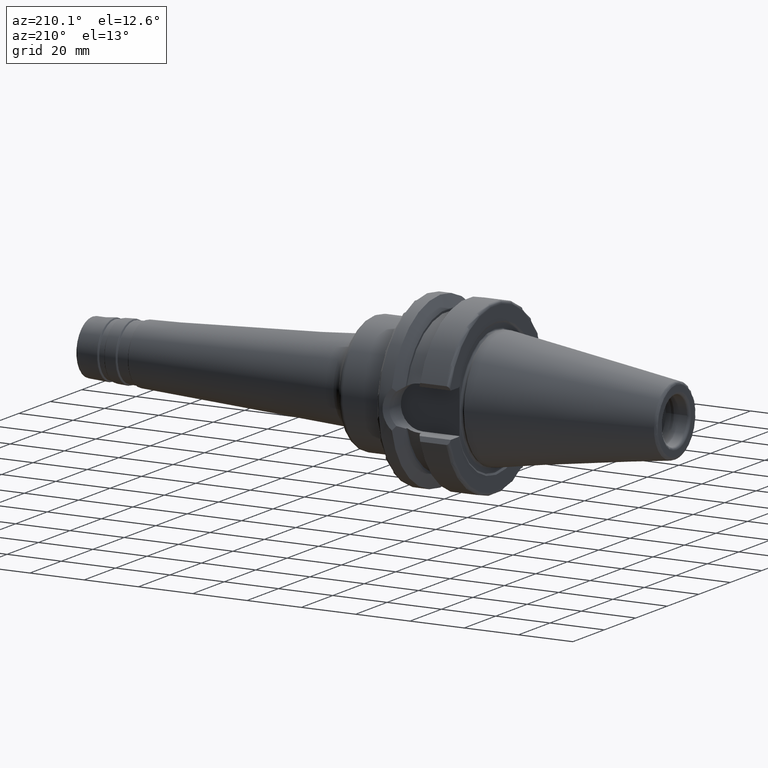
[diagram: clean part render]
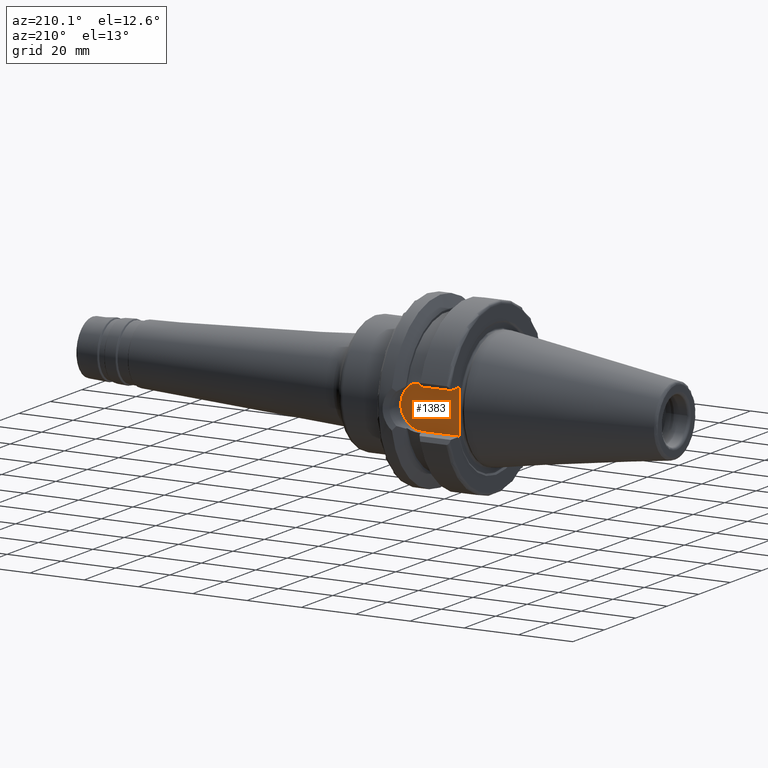
[diagram: same view with one face highlighted and labeled with its STEP entity id]
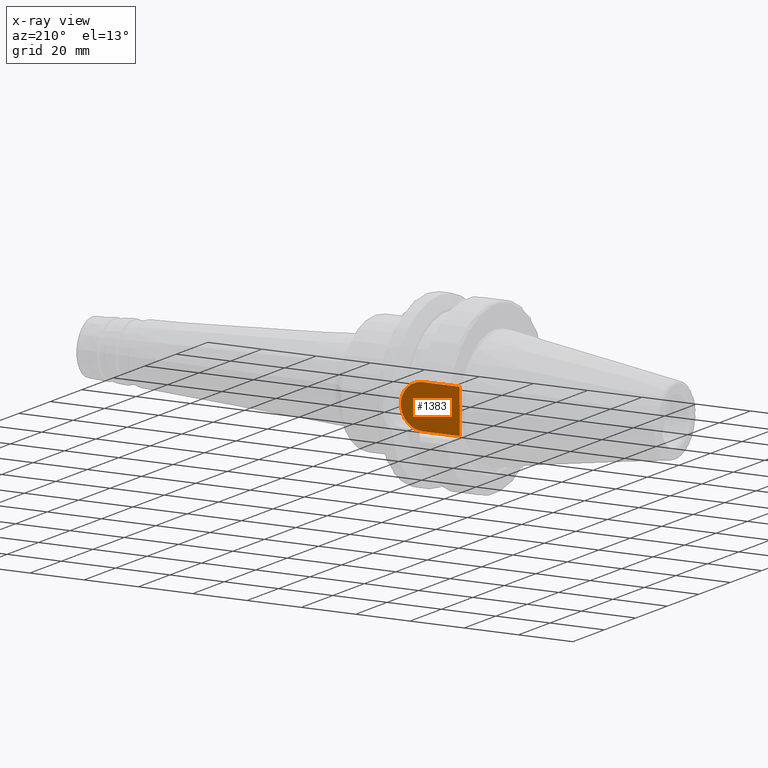
[diagram: x-ray of the same camera — body ghosted, the highlighted face saturated]
A machine part, auxiliary view. The second image highlights one B-rep face of the part: STEP entity #1383.
The next image is the same camera in x-ray: the body ghosted, the highlighted face saturated — about 0% of this face is hidden behind the body in this view.
In plain terms, the highlighted planar face has unit normal (0, 1, 0).
Its self-contained STEP definition (entity closure, byte-faithful):
#119=PLANE('',#1571);
#194=FACE_OUTER_BOUND('',#286,.T.);
#286=EDGE_LOOP('',(#1211,#1212,#1213,#1214,#1215));
#343=LINE('',#2532,#416);
#364=LINE('',#2613,#437);
#369=LINE('',#2660,#442);
#370=LINE('',#2663,#443);
#416=VECTOR('',#1888,10.);
#437=VECTOR('',#1931,10.);
#442=VECTOR('',#1970,10.);
#443=VECTOR('',#1975,10.);
#531=CIRCLE('',#1572,8.05);
#632=VERTEX_POINT('',#2529);
#633=VERTEX_POINT('',#2531);
#654=VERTEX_POINT('',#2610);
#655=VERTEX_POINT('',#2612);
#662=VERTEX_POINT('',#2658);
#805=EDGE_CURVE('',#633,#632,#343,.T.);
#836=EDGE_CURVE('',#654,#655,#364,.T.);
#853=EDGE_CURVE('',#654,#662,#369,.T.);
#854=EDGE_CURVE('',#662,#633,#531,.T.);
#855=EDGE_CURVE('',#655,#632,#370,.T.);
#1211=ORIENTED_EDGE('',*,*,#836,.F.);
#1212=ORIENTED_EDGE('',*,*,#853,.T.);
#1213=ORIENTED_EDGE('',*,*,#854,.T.);
#1214=ORIENTED_EDGE('',*,*,#805,.T.);
#1215=ORIENTED_EDGE('',*,*,#855,.F.);
#1383=ADVANCED_FACE('',(#194),#119,.T.);
#1571=AXIS2_PLACEMENT_3D('',#2661,#1971,#1972);
#1572=AXIS2_PLACEMENT_3D('',#2662,#1973,#1974);
#1888=DIRECTION('',(-1.,0.,7.9585879901445E-17));
#1931=DIRECTION('',(0.,0.,-1.));
#1970=DIRECTION('',(1.,0.,7.95858799014451E-17));
#1971=DIRECTION('center_axis',(0.,1.,0.));
#1972=DIRECTION('ref_axis',(0.,0.,1.));
#1973=DIRECTION('center_axis',(0.,1.,0.));
#1974=DIRECTION('ref_axis',(0.,0.,1.));
#1975=DIRECTION('',(0.,0.,-1.));
#2529=CARTESIAN_POINT('',(1.4,22.6,-8.05));
#2531=CARTESIAN_POINT('',(14.95,22.6,-8.05));
#2532=CARTESIAN_POINT('',(14.95,22.6,-8.05));
#2610=CARTESIAN_POINT('',(1.4,22.6,8.05));
#2612=CARTESIAN_POINT('',(1.4,22.6,0.));
#2613=CARTESIAN_POINT('',(1.4,22.6,2.77555756156289E-16));
#2658=CARTESIAN_POINT('',(14.95,22.6,8.05));
#2660=CARTESIAN_POINT('',(1.00000000000002,22.6,8.05));
#2661=CARTESIAN_POINT('Origin',(12.,22.6,5.55111512312578E-16));
#2662=CARTESIAN_POINT('Origin',(14.95,22.6,0.));
#2663=CARTESIAN_POINT('',(1.4,22.6,2.77555756156289E-16));